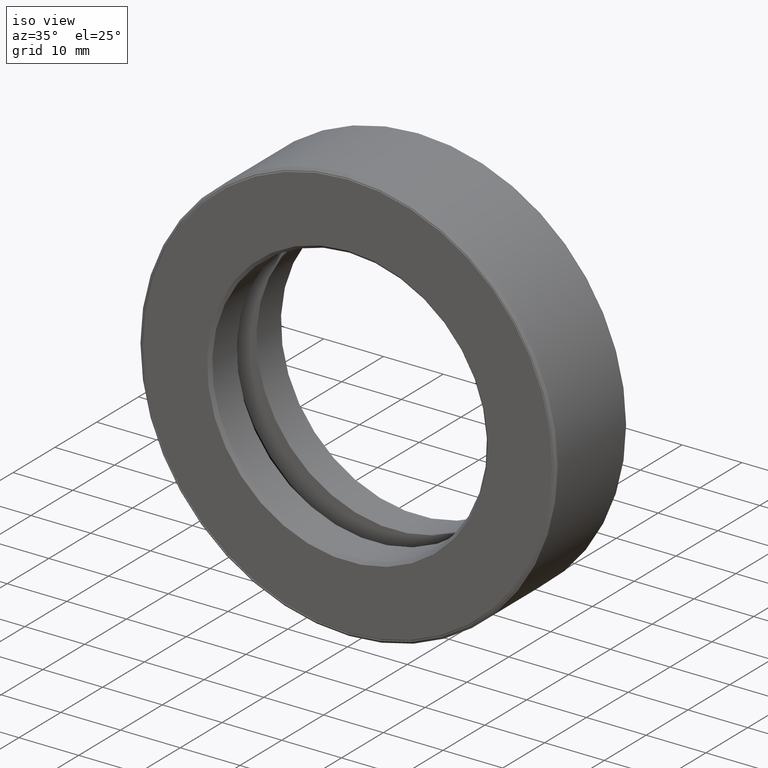
[diagram: clean part render]
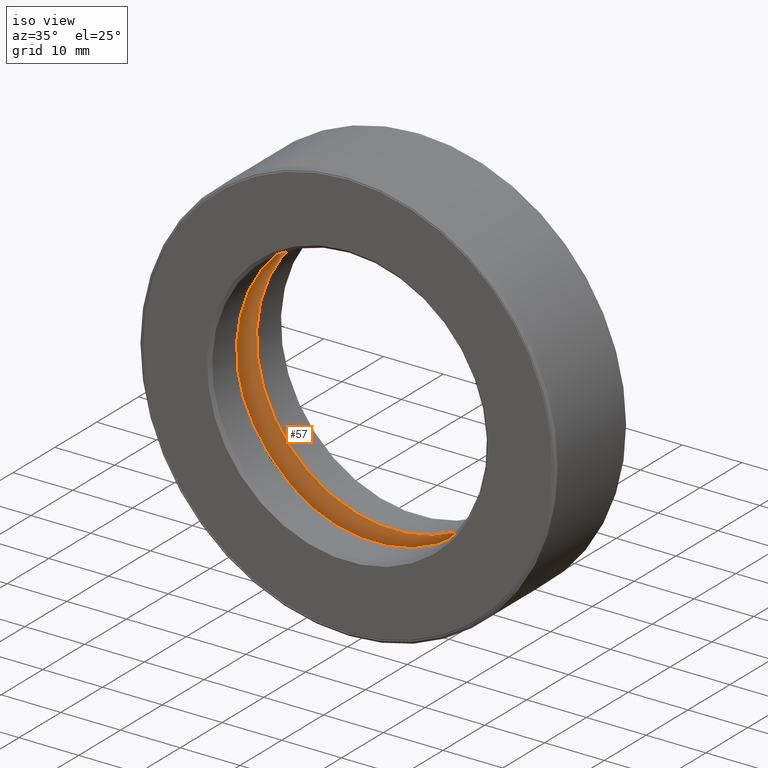
[diagram: same view with one face highlighted and labeled with its STEP entity id]
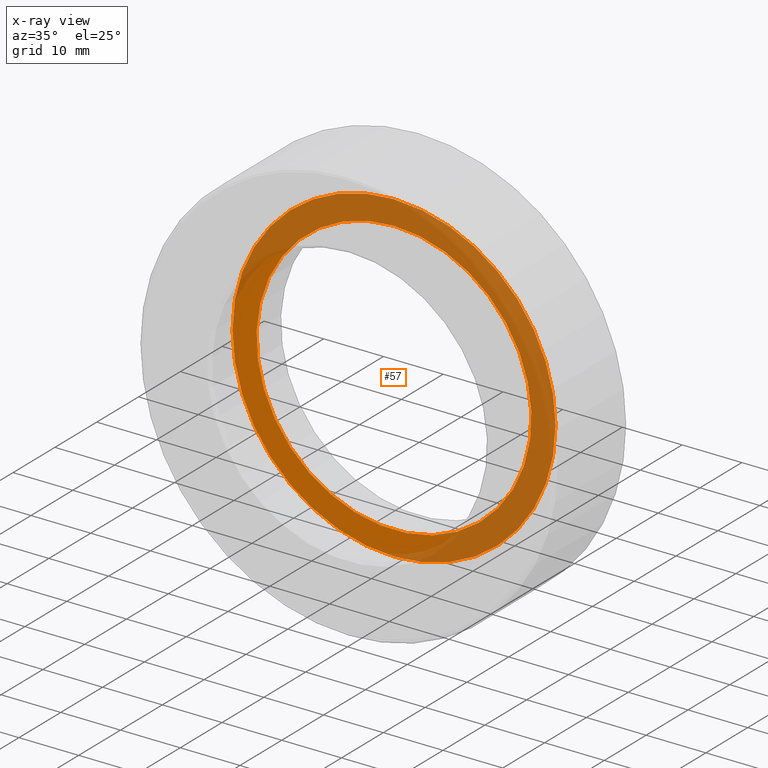
[diagram: x-ray of the same camera — body ghosted, the highlighted face saturated]
A machine part, iso view. The second image highlights one B-rep face of the part: STEP entity #57.
The next image is the same camera in x-ray: the body ghosted, the highlighted face saturated — about 64% of this face is hidden behind the body in this view.
In plain terms, the highlighted planar face has unit normal (0, -1, 0).
Its self-contained STEP definition (entity closure, byte-faithful):
#29 = DIRECTION ( 'NONE',  ( 0.0000000000000000000, -1.000000000000000000, 0.0000000000000000000 ) ) ;
#32 = CARTESIAN_POINT ( 'NONE',  ( 1.885147471968638200E-016, 0.4375000000000000600, 0.0000000000000000000 ) ) ;
#57 = ADVANCED_FACE ( 'NONE', ( #568, #547 ), #262, .T. ) ;
#66 = DIRECTION ( 'NONE',  ( 0.0000000000000000000, 0.0000000000000000000, 1.000000000000000000 ) ) ;
#93 = CIRCLE ( 'NONE', #186, 0.9062500000000002200 ) ;
#100 = CARTESIAN_POINT ( 'NONE',  ( 0.0000000000000000000, 0.4375000000000001100, 0.0000000000000000000 ) ) ;
#159 = ORIENTED_EDGE ( 'NONE', *, *, #310, .F. ) ;
#186 = AXIS2_PLACEMENT_3D ( 'NONE', #196, #244, #66 ) ;
#196 = CARTESIAN_POINT ( 'NONE',  ( 0.0000000000000000000, 0.4375000000000000600, 0.0000000000000000000 ) ) ;
#209 = AXIS2_PLACEMENT_3D ( 'NONE', #32, #29, #597 ) ;
#240 = DIRECTION ( 'NONE',  ( 0.0000000000000000000, 0.0000000000000000000, 1.000000000000000000 ) ) ;
#242 = CIRCLE ( 'NONE', #360, 1.064749999999999900 ) ;
#244 = DIRECTION ( 'NONE',  ( -0.0000000000000000000, 1.000000000000000000, -0.0000000000000000000 ) ) ;
#254 = DIRECTION ( 'NONE',  ( -0.0000000000000000000, 1.000000000000000000, -0.0000000000000000000 ) ) ;
#261 = VERTEX_POINT ( 'NONE', #588 ) ;
#262 = PLANE ( 'NONE',  #209 ) ;
#310 = EDGE_CURVE ( 'NONE', #261, #261, #242, .T. ) ;
#360 = AXIS2_PLACEMENT_3D ( 'NONE', #100, #254, #240 ) ;
#402 = CARTESIAN_POINT ( 'NONE',  ( 0.0000000000000000000, 0.4375000000000000600, 0.9062500000000002200 ) ) ;
#486 = VERTEX_POINT ( 'NONE', #402 ) ;
#516 = EDGE_CURVE ( 'NONE', #486, #486, #93, .T. ) ;
#547 = FACE_OUTER_BOUND ( 'NONE', #598, .T. ) ;
#560 = EDGE_LOOP ( 'NONE', ( #584 ) ) ;
#568 = FACE_BOUND ( 'NONE', #560, .T. ) ;
#584 = ORIENTED_EDGE ( 'NONE', *, *, #516, .T. ) ;
#588 = CARTESIAN_POINT ( 'NONE',  ( 0.0000000000000000000, 0.4375000000000001100, 1.064749999999999900 ) ) ;
#597 = DIRECTION ( 'NONE',  ( 0.0000000000000000000, -0.0000000000000000000, -1.000000000000000000 ) ) ;
#598 = EDGE_LOOP ( 'NONE', ( #159 ) ) ;